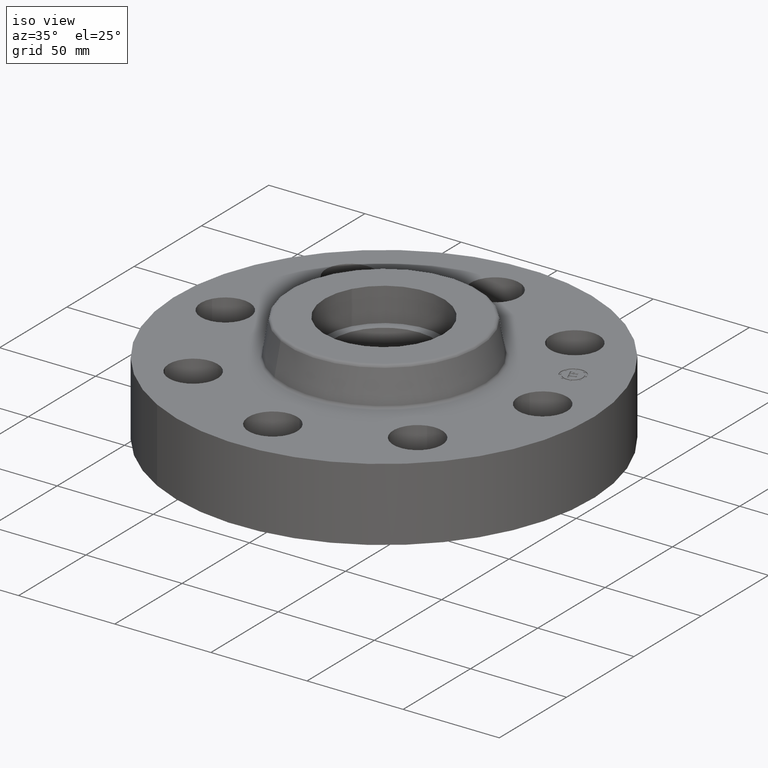
[diagram: clean part render]
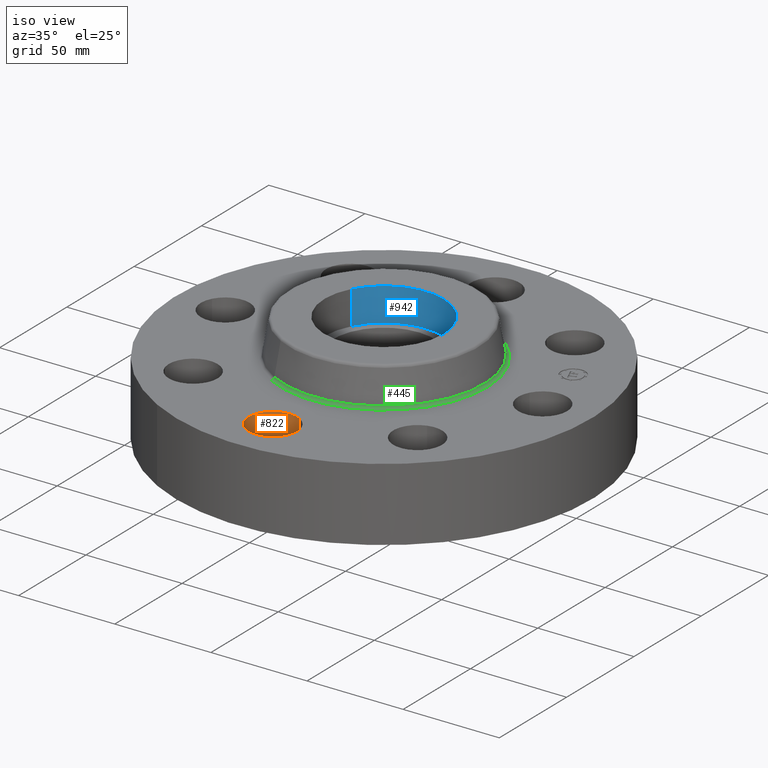
[diagram: same view with three faces highlighted in distinct colors, each labeled with its STEP entity id]
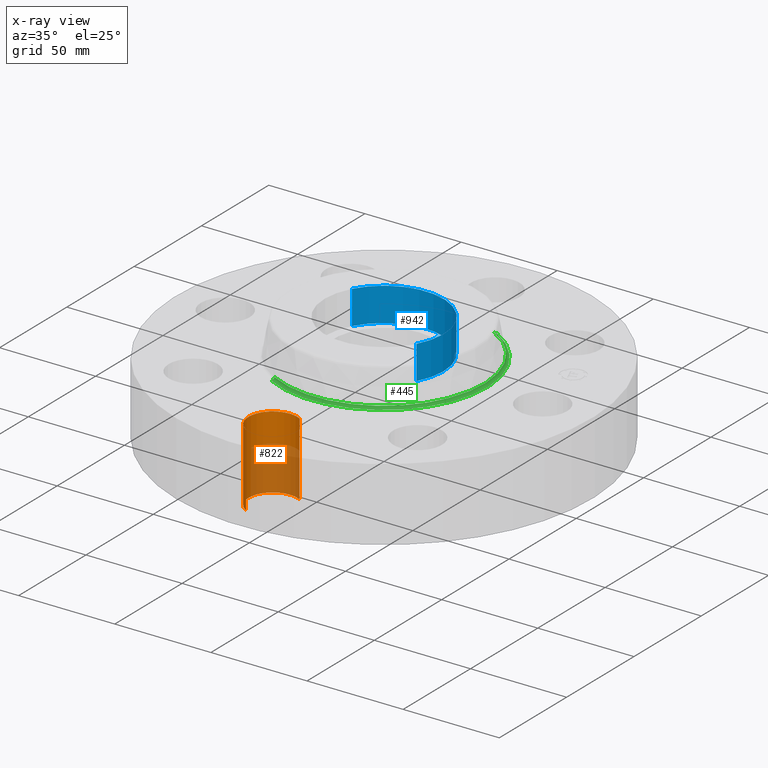
[diagram: x-ray of the same camera — body ghosted, the three highlighted faces saturated]
A machine part, iso view with three faces highlighted in distinct colors.
The next image is the same camera in x-ray (body ghosted, the three faces saturated) — at least one of them is partly hidden behind the body in this view.
Their STEP definitions:

[orange] entity #822 — the highlighted cylindrical surface (edge-blend (fillet) strip) has radius 12.7 mm, axis along (0, -0, -1).
#265=AXIS2_PLACEMENT_3D('Circle Axis2P3D',#263,#264,$) ;
#795=AXIS2_PLACEMENT_3D('Cylinder Axis2P3D',#792,#793,#794) ;
#813=AXIS2_PLACEMENT_3D('Circle Axis2P3D',#811,#812,$) ;
#258=CARTESIAN_POINT('Vertex',(0.239712769303,-2.81120871907,0.)) ;
#260=CARTESIAN_POINT('Vertex',(-0.239712769303,-3.68879128096,0.)) ;
#263=CARTESIAN_POINT('Axis2P3D Location',(-1.39870617276E-016,-3.25000000001,0.)) ;
#792=CARTESIAN_POINT('Axis2P3D Location',(-3.6047736424E-016,-3.25000000001,1.49606299213)) ;
#797=CARTESIAN_POINT('Line Origine',(-0.239712769303,-3.68879128096,0.750000000003)) ;
#801=CARTESIAN_POINT('Vertex',(-0.239712769303,-3.68879128096,1.50000000001)) ;
#804=CARTESIAN_POINT('Line Origine',(0.239712769303,-2.81120871907,0.750000000003)) ;
#808=CARTESIAN_POINT('Vertex',(0.239712769303,-2.81120871907,1.50000000001)) ;
#811=CARTESIAN_POINT('Axis2P3D Location',(-3.6047736424E-016,-3.25000000001,1.50000000001)) ;
#264=DIRECTION('Axis2P3D Direction',(0.,0.,-0.0393700787402)) ;
#793=DIRECTION('Axis2P3D Direction',(0.,-0.,-0.0393700787402)) ;
#794=DIRECTION('Axis2P3D XDirection',(0.0188750212049,0.0345504945626,-0.)) ;
#798=DIRECTION('Vector Direction',(0.,0.,-0.0393700787402)) ;
#805=DIRECTION('Vector Direction',(0.,0.,-0.0393700787402)) ;
#812=DIRECTION('Axis2P3D Direction',(0.,-0.,-0.0393700787402)) ;
#799=VECTOR('Line Direction',#798,0.0393700787402) ;
#806=VECTOR('Line Direction',#805,0.0393700787402) ;
#817=ORIENTED_EDGE('',*,*,#803,.F.) ;
#818=ORIENTED_EDGE('',*,*,#267,.T.) ;
#819=ORIENTED_EDGE('',*,*,#810,.T.) ;
#820=ORIENTED_EDGE('',*,*,#815,.F.) ;
#822=ADVANCED_FACE('PartBody',(#821),#796,.F.) ;
#266=CIRCLE('generated circle',#265,0.500000000002) ;
#814=CIRCLE('generated circle',#813,0.500000000002) ;
#796=CYLINDRICAL_SURFACE('generated cylinder',#795,0.500000000002) ;
#267=EDGE_CURVE('',#261,#259,#266,.T.) ;
#803=EDGE_CURVE('',#261,#802,#800,.F.) ;
#810=EDGE_CURVE('',#259,#809,#807,.F.) ;
#815=EDGE_CURVE('',#802,#809,#814,.T.) ;
#816=EDGE_LOOP('',(#817,#818,#819,#820)) ;
#821=FACE_OUTER_BOUND('',#816,.T.) ;
#800=LINE('Line',#797,#799) ;
#807=LINE('Line',#804,#806) ;
#259=VERTEX_POINT('',#258) ;
#261=VERTEX_POINT('',#260) ;
#802=VERTEX_POINT('',#801) ;
#809=VERTEX_POINT('',#808) ;

[blue] entity #942 — the highlighted cylindrical surface (partial cylindrical patch) has radius 30.988 mm, axis along (0, 0, -1).
#42=AXIS2_PLACEMENT_3D('Circle Axis2P3D',#40,#41,$) ;
#560=AXIS2_PLACEMENT_3D('Circle Axis2P3D',#558,#559,$) ;
#924=AXIS2_PLACEMENT_3D('Cylinder Axis2P3D',#921,#922,#923) ;
#40=CARTESIAN_POINT('Axis2P3D Location',(1.39870617276E-016,3.84644197508E-016,1.56000000001)) ;
#44=CARTESIAN_POINT('Vertex',(-1.07065072551,0.584899157099,1.56000000001)) ;
#46=CARTESIAN_POINT('Vertex',(1.07065072551,-0.584899157099,1.56000000001)) ;
#558=CARTESIAN_POINT('Axis2P3D Location',(2.09805925913E-016,0.,2.25000000001)) ;
#562=CARTESIAN_POINT('Vertex',(-1.07065072551,0.584899157099,2.25000000001)) ;
#564=CARTESIAN_POINT('Vertex',(1.07065072551,-0.584899157099,2.25000000001)) ;
#921=CARTESIAN_POINT('Axis2P3D Location',(1.39870617276E-016,3.84644197508E-016,2.24606299213)) ;
#926=CARTESIAN_POINT('Line Origine',(-1.07065072551,0.584899157099,1.90500000001)) ;
#931=CARTESIAN_POINT('Line Origine',(1.07065072551,-0.584899157099,1.90500000001)) ;
#41=DIRECTION('Axis2P3D Direction',(0.,0.,-0.0393700787402)) ;
#559=DIRECTION('Axis2P3D Direction',(0.,0.,-0.0393700787402)) ;
#922=DIRECTION('Axis2P3D Direction',(0.,0.,-0.0393700787402)) ;
#923=DIRECTION('Axis2P3D XDirection',(0.0345504945626,-0.0188750212049,0.)) ;
#927=DIRECTION('Vector Direction',(0.,0.,-0.0393700787402)) ;
#932=DIRECTION('Vector Direction',(0.,0.,-0.0393700787402)) ;
#928=VECTOR('Line Direction',#927,0.0393700787402) ;
#933=VECTOR('Line Direction',#932,0.0393700787402) ;
#937=ORIENTED_EDGE('',*,*,#566,.F.) ;
#938=ORIENTED_EDGE('',*,*,#930,.F.) ;
#939=ORIENTED_EDGE('',*,*,#48,.T.) ;
#940=ORIENTED_EDGE('',*,*,#935,.T.) ;
#942=ADVANCED_FACE('PartBody',(#941),#925,.F.) ;
#43=CIRCLE('generated circle',#42,1.22) ;
#561=CIRCLE('generated circle',#560,1.22) ;
#925=CYLINDRICAL_SURFACE('generated cylinder',#924,1.22) ;
#48=EDGE_CURVE('',#45,#47,#43,.T.) ;
#566=EDGE_CURVE('',#563,#565,#561,.T.) ;
#930=EDGE_CURVE('',#45,#563,#929,.F.) ;
#935=EDGE_CURVE('',#47,#565,#934,.F.) ;
#936=EDGE_LOOP('',(#937,#938,#939,#940)) ;
#941=FACE_OUTER_BOUND('',#936,.T.) ;
#929=LINE('Line',#926,#928) ;
#934=LINE('Line',#931,#933) ;
#45=VERTEX_POINT('',#44) ;
#47=VERTEX_POINT('',#46) ;
#563=VERTEX_POINT('',#562) ;
#565=VERTEX_POINT('',#564) ;

[green] entity #445 — the highlighted toroidal blend (fillet) surface has major radius 53.6028 mm and minor (blend) radius 1.524 mm.
#409=AXIS2_PLACEMENT_3D('Torus Axis2P3D',#406,#407,#408) ;
#413=AXIS2_PLACEMENT_3D('Circle Axis2P3D',#411,#412,$) ;
#422=AXIS2_PLACEMENT_3D('Circle Axis2P3D',#420,#421,$) ;
#429=AXIS2_PLACEMENT_3D('Circle Axis2P3D',#427,#428,$) ;
#436=AXIS2_PLACEMENT_3D('Circle Axis2P3D',#434,#435,$) ;
#406=CARTESIAN_POINT('Axis2P3D Location',(0.,0.,1.56000000001)) ;
#411=CARTESIAN_POINT('Axis2P3D Location',(0.,0.,1.50000000001)) ;
#415=CARTESIAN_POINT('Vertex',(1.01175375709,1.85200282974,1.50000000001)) ;
#417=CARTESIAN_POINT('Vertex',(-1.01175375709,-1.85200282974,1.50000000001)) ;
#420=CARTESIAN_POINT('Axis2P3D Location',(1.01175375709,1.85200282974,1.56000000001)) ;
#424=CARTESIAN_POINT('Vertex',(0.983425237841,1.80014782309,1.54958110935)) ;
#427=CARTESIAN_POINT('Axis2P3D Location',(0.,0.,1.54958110935)) ;
#431=CARTESIAN_POINT('Vertex',(-0.983425237841,-1.80014782309,1.54958110935)) ;
#434=CARTESIAN_POINT('Axis2P3D Location',(-1.01175375709,-1.85200282974,1.56000000001)) ;
#407=DIRECTION('Axis2P3D Direction',(0.,0.,-0.0393700787402)) ;
#408=DIRECTION('Axis2P3D XDirection',(-0.0188750212049,-0.0345504945626,0.)) ;
#412=DIRECTION('Axis2P3D Direction',(0.,0.,-0.0393700787402)) ;
#421=DIRECTION('Axis2P3D Direction',(-0.0345504945626,0.0188750212049,0.)) ;
#428=DIRECTION('Axis2P3D Direction',(0.,0.,-0.0393700787402)) ;
#435=DIRECTION('Axis2P3D Direction',(0.0345504945626,-0.0188750212049,0.)) ;
#440=ORIENTED_EDGE('',*,*,#419,.F.) ;
#441=ORIENTED_EDGE('',*,*,#426,.T.) ;
#442=ORIENTED_EDGE('',*,*,#433,.T.) ;
#443=ORIENTED_EDGE('',*,*,#438,.F.) ;
#445=ADVANCED_FACE('PartBody',(#444),#410,.F.) ;
#414=CIRCLE('generated circle',#413,2.11034597788) ;
#423=CIRCLE('generated circle',#422,0.0600000000002) ;
#430=CIRCLE('generated circle',#429,2.0512575127) ;
#437=CIRCLE('generated circle',#436,0.0600000000002) ;
#410=TOROIDAL_SURFACE('homeo Torus',#409,2.11034597788,0.0600000000002) ;
#419=EDGE_CURVE('',#416,#418,#414,.T.) ;
#426=EDGE_CURVE('',#416,#425,#423,.T.) ;
#433=EDGE_CURVE('',#425,#432,#430,.T.) ;
#438=EDGE_CURVE('',#418,#432,#437,.T.) ;
#439=EDGE_LOOP('',(#440,#441,#442,#443)) ;
#444=FACE_OUTER_BOUND('',#439,.T.) ;
#416=VERTEX_POINT('',#415) ;
#418=VERTEX_POINT('',#417) ;
#425=VERTEX_POINT('',#424) ;
#432=VERTEX_POINT('',#431) ;